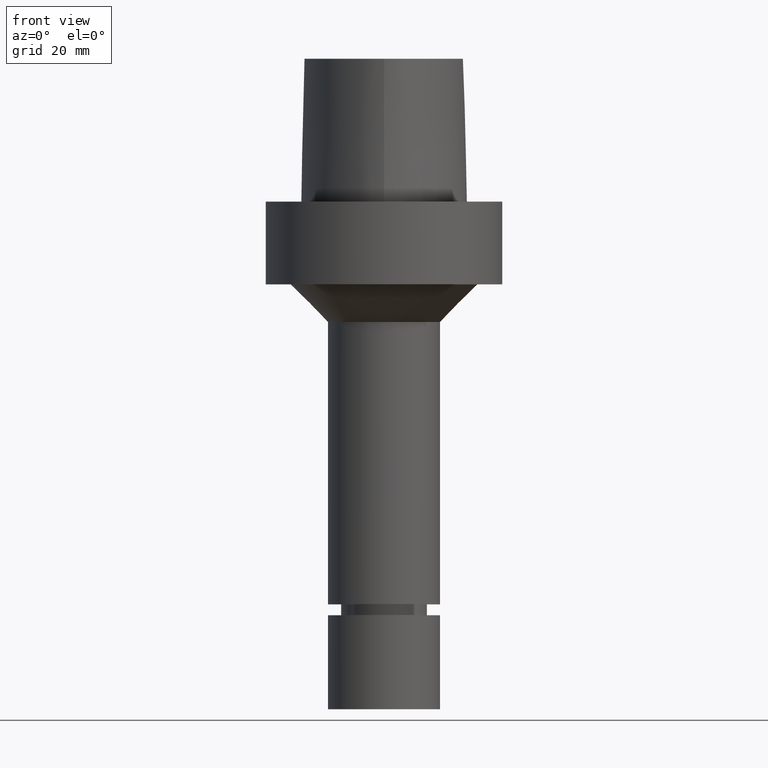
[diagram: clean part render]
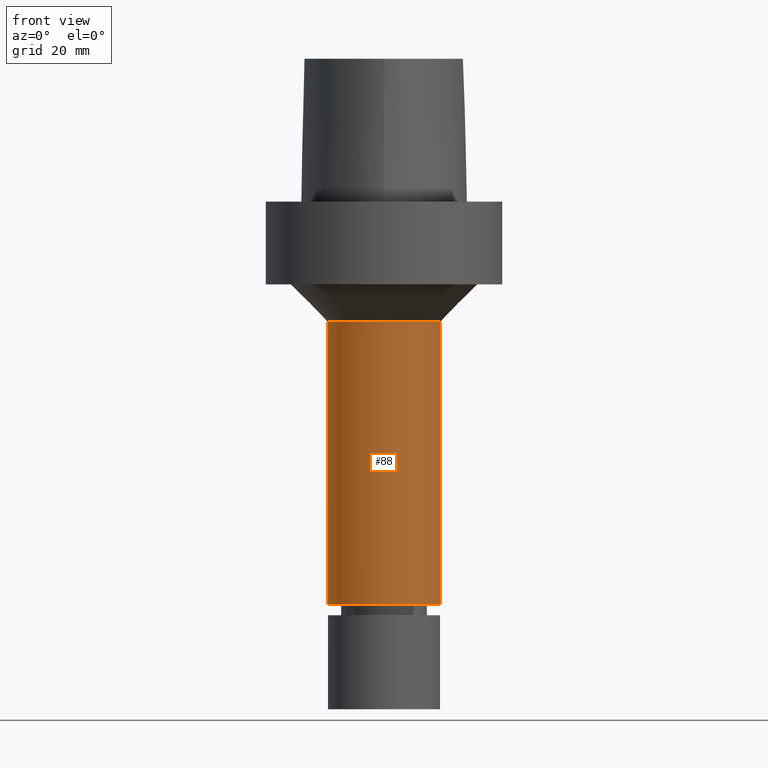
[diagram: same view with one face highlighted and labeled with its STEP entity id]
A machine part, front view. The second image highlights one B-rep face of the part: STEP entity #88.
In plain terms, the highlighted cylindrical surface (bore or boss wall) has radius 15 mm, axis along (0, 0, -1).
Its self-contained STEP definition (entity closure, byte-faithful):
#88=ADVANCED_FACE('Unnamed[1]',(#214,#215),#216,.T.);
#122=EDGE_CURVE('Unnamed[1]',#266,#266,#267,.T.);
#140=EDGE_CURVE('Unnamed[1]',#290,#290,#291,.T.);
#214=FACE_BOUND('',#377,.T.);
#215=FACE_BOUND('',#378,.T.);
#216=CYLINDRICAL_SURFACE('',#379,15.0);
#266=VERTEX_POINT('',#541);
#267=CIRCLE('',#542,14.9999999999997);
#290=VERTEX_POINT('',#570);
#291=CIRCLE('',#571,15.0000000000002);
#377=EDGE_LOOP('',(#768));
#378=EDGE_LOOP('',(#769));
#379=AXIS2_PLACEMENT_3D('',#770,#771,#772);
#541=CARTESIAN_POINT('',(1.9594348786358E-015,14.9999999999997,-32.0000000000006));
#542=AXIS2_PLACEMENT_3D('',#819,#820,#821);
#570=CARTESIAN_POINT('',(6.55798361643999E-015,15.0000000000002,-107.100000114415));
#571=AXIS2_PLACEMENT_3D('',#841,#842,#843);
#768=ORIENTED_EDGE('',*,*,#140,.F.);
#769=ORIENTED_EDGE('',*,*,#122,.T.);
#770=CARTESIAN_POINT('',(4.25870924753789E-015,8.51741849507578E-015,-69.5500000572079));
#771=DIRECTION('',(6.12323399573677E-017,1.22464679914735E-016,-1.0));
#772=DIRECTION('',(-1.23259516440783E-032,1.0,1.22464679914735E-016));
#819=CARTESIAN_POINT('',(1.9594348786358E-015,3.9188697572716E-015,-32.0000000000006));
#820=DIRECTION('',(6.12323399573677E-017,1.22464679914735E-016,-1.0));
#821=DIRECTION('',(-1.23259516440783E-032,1.0,1.22464679914735E-016));
#841=CARTESIAN_POINT('',(6.55798361643999E-015,1.311596723288E-014,-107.100000114415));
#842=DIRECTION('',(6.12323399573677E-017,1.22464679914735E-016,-1.0));
#843=DIRECTION('',(-1.23259516440783E-032,1.0,1.22464679914735E-016));